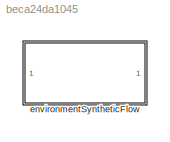
MODEL slx_beca24da1045
KIND library
CONFIG AbsTol = auto
CONFIG EnableMultiTasking = off
CONFIG FixedStep = auto
CONFIG MaxStep = auto
CONFIG MinStep = auto
CONFIG RelTol = 1e-3
CONFIG SampleTimeConstraint = Unconstrained
CONFIG SolverName = VariableStepAuto
CONFIG StartTime = 0.0
CONFIG StopTime = 10.0
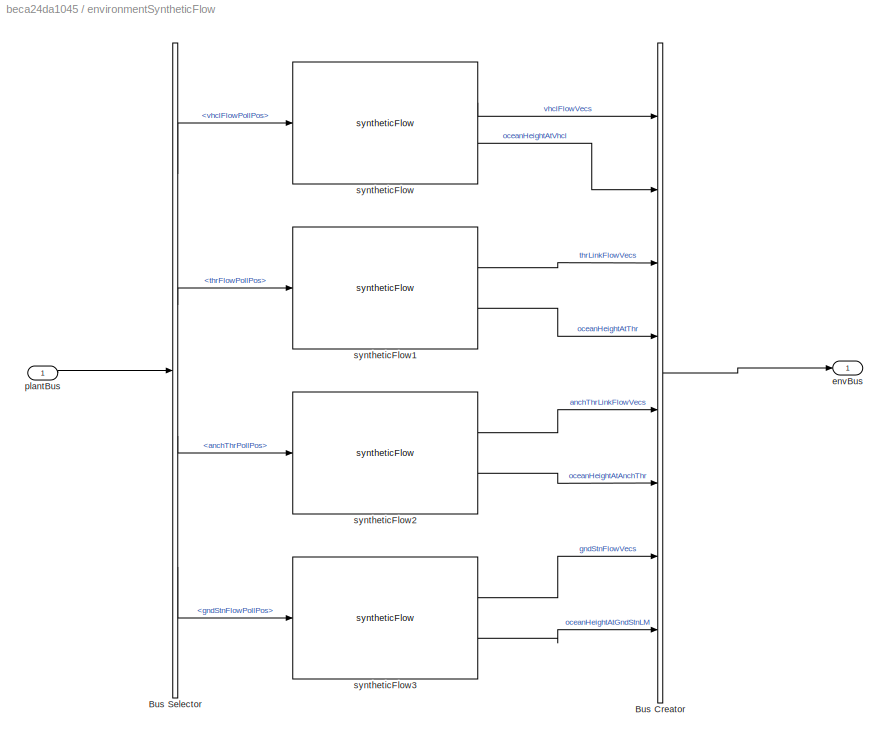
BLOCK [SubSystem] environmentSyntheticFlow
  InitFcn = initializeBussesFromBlock(gcb)
  LoadFcn = initializeBussesFromBlock(gcb)
  Ports = [1, 1]
  RequestExecContextInheritance = off
  StartFcn = initializeBussesFromBlock(gcb)
BLOCK [BusCreator] environmentSyntheticFlow/Bus Creator
  DisplayOption = bar
  InheritFromInputs = on
  Inputs = 8
  NonVirtualBus = on
  OutDataTypeStr = Bus: envBus
  Ports = [8, 1]
BLOCK [BusSelector] environmentSyntheticFlow/Bus Selector
  OutputSignals = vhclFlowPollPos,thrFlowPollPos,anchThrPollPos,gndStnFlowPollPos
  Ports = [1, 4]
BLOCK [Outport] environmentSyntheticFlow/envBus
  OutDataTypeStr = Bus: envBus
  VectorParamsAs1DForOutWhenUnconnected = off
BLOCK [Inport] environmentSyntheticFlow/plantBus
  OutDataTypeStr = Bus: plantBus
BLOCK [Reference] environmentSyntheticFlow/syntheticFlow  REF=syntheticFlow_ul/syntheticFlow
  Ports = [1, 2]
  SourceBlock = syntheticFlow_ul/syntheticFlow
BLOCK [Reference] environmentSyntheticFlow/syntheticFlow1  REF=syntheticFlow_ul/syntheticFlow
  Ports = [1, 2]
  SourceBlock = syntheticFlow_ul/syntheticFlow
BLOCK [Reference] environmentSyntheticFlow/syntheticFlow2  REF=syntheticFlow_ul/syntheticFlow
  Ports = [1, 2]
  SourceBlock = syntheticFlow_ul/syntheticFlow
BLOCK [Reference] environmentSyntheticFlow/syntheticFlow3  REF=syntheticFlow_ul/syntheticFlow
  Ports = [1, 2]
  SourceBlock = syntheticFlow_ul/syntheticFlow
LINE environmentSyntheticFlow/Bus Creator:1 -> environmentSyntheticFlow/envBus:1
LINE environmentSyntheticFlow/Bus Selector:1 -> environmentSyntheticFlow/syntheticFlow:1
LINE environmentSyntheticFlow/Bus Selector:2 -> environmentSyntheticFlow/syntheticFlow1:1
LINE environmentSyntheticFlow/Bus Selector:3 -> environmentSyntheticFlow/syntheticFlow2:1
LINE environmentSyntheticFlow/Bus Selector:4 -> environmentSyntheticFlow/syntheticFlow3:1
LINE environmentSyntheticFlow/plantBus:1 -> environmentSyntheticFlow/Bus Selector:1
LINE environmentSyntheticFlow/syntheticFlow1:1 -> environmentSyntheticFlow/Bus Creator:3
LINE environmentSyntheticFlow/syntheticFlow1:2 -> environmentSyntheticFlow/Bus Creator:4
LINE environmentSyntheticFlow/syntheticFlow2:1 -> environmentSyntheticFlow/Bus Creator:5
LINE environmentSyntheticFlow/syntheticFlow2:2 -> environmentSyntheticFlow/Bus Creator:6
LINE environmentSyntheticFlow/syntheticFlow3:1 -> environmentSyntheticFlow/Bus Creator:7
LINE environmentSyntheticFlow/syntheticFlow3:2 -> environmentSyntheticFlow/Bus Creator:8
LINE environmentSyntheticFlow/syntheticFlow:1 -> environmentSyntheticFlow/Bus Creator:1
LINE environmentSyntheticFlow/syntheticFlow:2 -> environmentSyntheticFlow/Bus Creator:2
